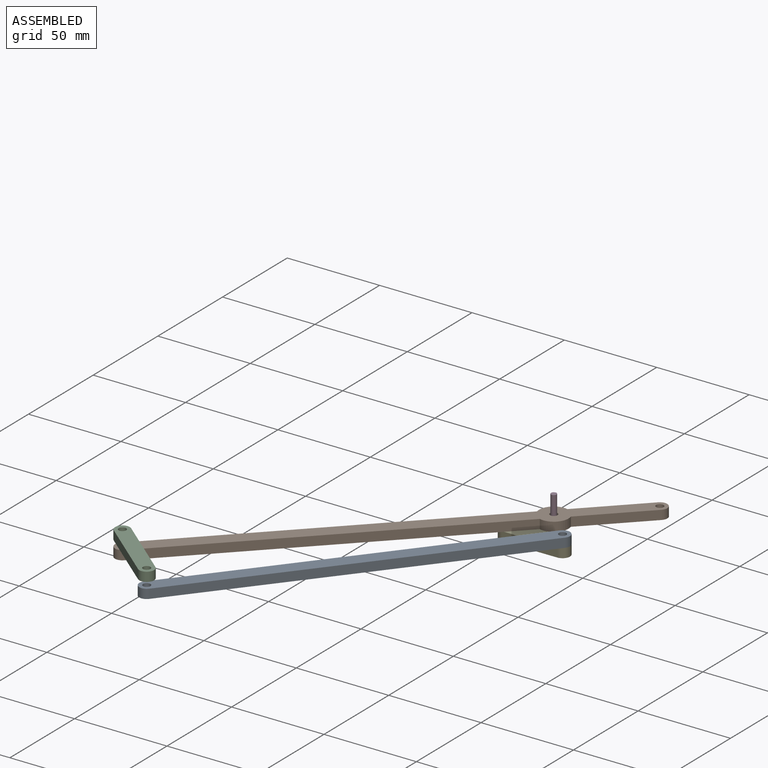
[diagram: assembled view]
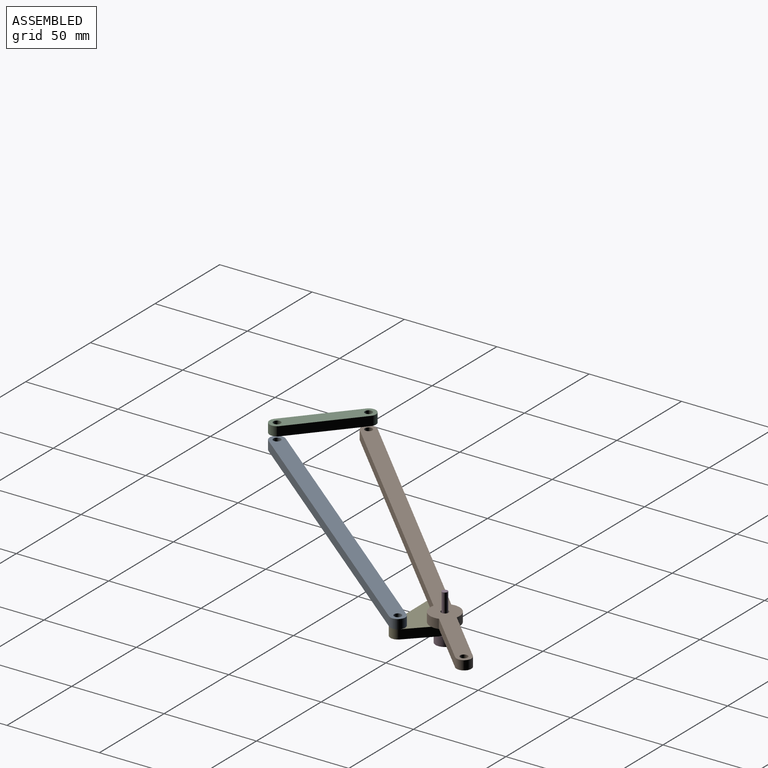
[diagram: assembled view, second angle]
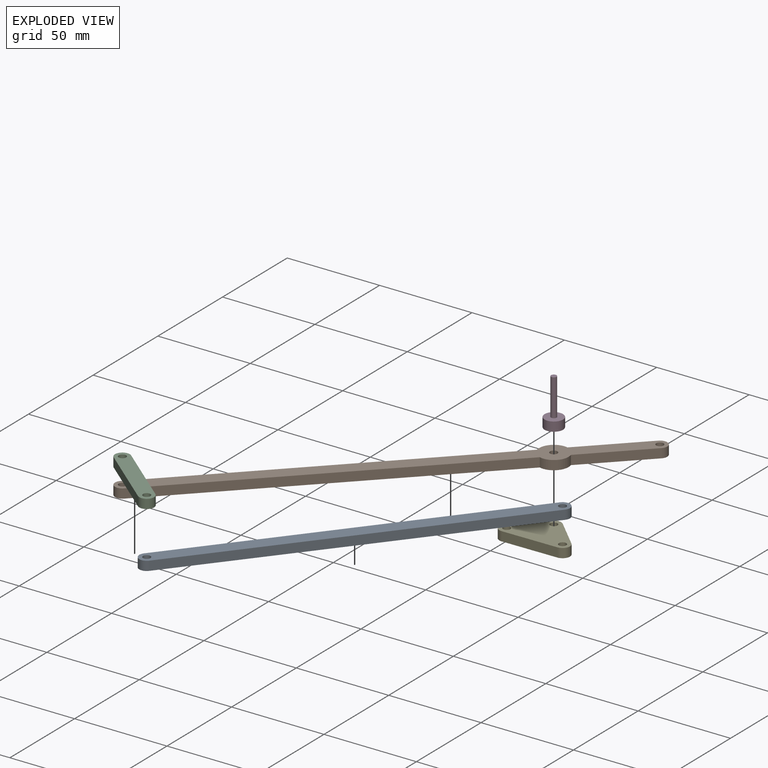
[diagram: exploded view]
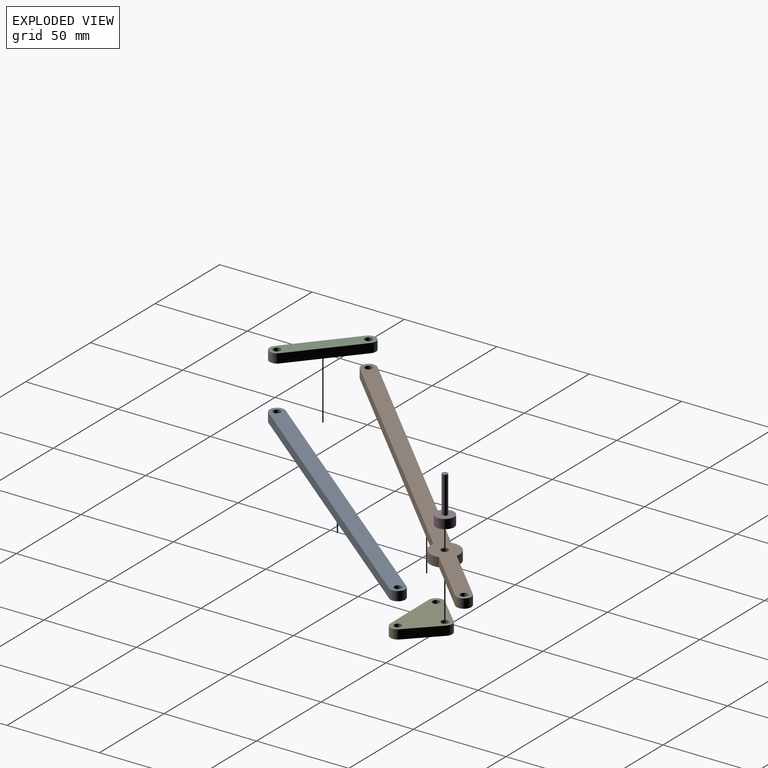
[diagram: exploded view, second angle]
ASSEMBLY  parts=5 mates=8
PART A: 8 faces, bbox 8x200x5 mm
  f0: cylinder r=4mm len=8mm, axis (0,0,-1), area 62.8mm2, adj f1,f5,f6,f7
  f1: plane 192x5mm, normal (-1,0,0), area 960mm2, adj f0,f2,f6,f7
  f2: cylinder r=4mm len=8mm, axis (0,0,-1), area 62.8mm2, adj f1,f5,f6,f7
  f3: cylinder r=2mm len=5mm, axis (0,0,-1), area 62.8mm2, adj f6,f7
  f4: cylinder r=2mm len=5mm, axis (0,0,-1), area 62.8mm2, adj f6,f7
  f5: plane 192x5mm, normal (1,0,0), area 960mm2, adj f0,f2,f6,f7
  f6: plane 200x8mm, normal (0,0,1), area 1561.1mm2, adj f0,f1,f2,f3,f4,f5
  f7: plane 200x8mm, normal (0,0,-1), area 1561.1mm2, adj f0,f1,f2,f3,f4,f5
PART B: 13 faces, bbox 16x250x5 mm
  f0: cylinder r=8mm len=13.71mm, axis (0,0,-1), area 82.3mm2, adj f1,f9,f11,f12
  f1: plane 187.37x5mm, normal (-1,0,0), area 936.9mm2, adj f0,f2,f11,f12
  f2: cylinder r=4mm len=8mm, axis (0,0,-1), area 62.8mm2, adj f1,f3,f11,f12
  f3: plane 187.23x5mm, normal (1,0,0), area 936.2mm2, adj f2,f4,f11,f12
  f4: cylinder r=8mm len=14mm, axis (0,0,-1), area 85.2mm2, adj f3,f5,f11,f12
  f5: plane 40.77x5mm, normal (1,0,0), area 203.9mm2, adj f4,f6,f11,f12
  f6: cylinder r=4mm len=8mm, axis (0,0,-1), area 62.8mm2, adj f5,f9,f11,f12
  f7: cylinder r=2mm len=5mm, axis (0,0,-1), area 62.8mm2, adj f11,f12
  f8: cylinder r=2mm len=5mm, axis (0,0,-1), area 62.8mm2, adj f11,f12
  f9: plane 40.92x5mm, normal (-1,0,0), area 204.6mm2, adj f0,f6,f11,f12
  f10: cylinder r=2mm len=5mm, axis (0,0,-1), area 62.8mm2, adj f11,f12
  f11: plane 250x16mm, normal (0,0,1), area 2027.2mm2, adj f0,f1,f2,f3,f4,f5,f6,f7
  f12: plane 250x16mm, normal (0,0,-1), area 2027.2mm2, adj f0,f1,f2,f3,f4,f5,f6,f7
PART C: 8 faces, bbox 8x50x5 mm
  f0: cylinder r=4mm len=8mm, axis (0,0,-1), area 62.8mm2, adj f1,f5,f6,f7
  f1: plane 42x5mm, normal (-1,0,0), area 210mm2, adj f0,f2,f6,f7
  f2: cylinder r=4mm len=8mm, axis (0,0,-1), area 62.8mm2, adj f1,f5,f6,f7
  f3: cylinder r=2mm len=5mm, axis (0,0,-1), area 62.8mm2, adj f6,f7
  f4: cylinder r=2mm len=5mm, axis (0,0,-1), area 62.8mm2, adj f6,f7
  f5: plane 42x5mm, normal (1,0,0), area 210mm2, adj f0,f2,f6,f7
  f6: plane 50x8mm, normal (0,0,1), area 361.1mm2, adj f0,f1,f2,f3,f4,f5
  f7: plane 50x8mm, normal (0,0,-1), area 361.1mm2, adj f0,f1,f2,f3,f4,f5
PART D: 5 faces, bbox 10x10x25 mm
  f0: cylinder r=1.5mm len=20mm, axis (0,0,-1), area 188.5mm2, adj f1,f3
  f1: plane 3x3mm, normal (0,0,1), area 7.1mm2, adj f0
  f2: cylinder r=5mm len=10mm, axis (0,0,-1), area 157.1mm2, adj f3,f4
  f3: plane 10x10mm, normal (0,0,1), area 71.5mm2, adj f0,f2
  f4: plane 10x10mm, normal (0,0,-1), area 78.5mm2, adj f2
PART E: 11 faces, bbox 38x23x5 mm
  f0: plane 30x5mm, normal (0,1,0), area 150mm2, adj f1,f7,f9,f10
  f1: cylinder r=4mm len=6.83mm, axis (0,0,-1), area 47.1mm2, adj f0,f2,f9,f10
  f2: plane 15x15mm, normal (-0.71,-0.71,0), area 106.1mm2, adj f1,f3,f9,f10
  f3: cylinder r=4mm len=5.66mm, axis (0,0,-1), area 31.4mm2, adj f2,f4,f9,f10
  f4: plane 15x15mm, normal (0.71,-0.71,0), area 106.1mm2, adj f3,f7,f9,f10
  f5: cylinder r=2mm len=5mm, axis (0,0,-1), area 62.8mm2, adj f9,f10
  f6: cylinder r=2mm len=5mm, axis (0,0,-1), area 62.8mm2, adj f9,f10
  f7: cylinder r=4mm len=6.83mm, axis (0,0,-1), area 47.1mm2, adj f0,f4,f9,f10
  f8: cylinder r=2mm len=5mm, axis (0,0,-1), area 62.8mm2, adj f9,f10
  f9: plane 38x23mm, normal (0,0,1), area 527.3mm2, adj f0,f1,f2,f3,f4,f5,f6,f7
  f10: plane 38x23mm, normal (0,0,-1), area 527.3mm2, adj f0,f1,f2,f3,f4,f5,f6,f7
PLACE A rot(axis=(0,0,-1),38.8deg) t=(-74.99,-114.64,-8.37)mm
PLACE B rot(axis=(0,0,-1),44.9deg) t=(-144.91,-55.42,-8.37)mm
PLACE C rot(axis=(0,0,1),49.9deg) t=(-264,-145.53,0)mm
PLACE D rot(axis=(0,0,1),10.8deg) t=(-130.67,-7.62,-18.37)mm
PLACE E rot(axis=(0,0,-1),179.5deg) t=(2.25,86.62,-13.37)mm fixed
MATE cylindrical E.f1 <-> A.f0  axis (0,0,-1) through (-60.38,-0.75,-8.37)mm
MATE cylindrical E.f3 <-> D.f0  axis (0,0,1) through (-75.52,14.11,-8.37)mm
MATE planar E.f9 <-> B.f12  axis (0,0,1) through (-75.42,3.65,-8.37)mm
MATE cylindrical E.f3 <-> B.f0  axis (0,0,1) through (-75.52,14.11,-8.37)mm
MATE cylindrical A.f2 <-> C.f2  axis (0,0,1) through (-180.7,-150.37,-3.37)mm
MATE planar E.f9 <-> A.f7  axis (0,0,1) through (-75.42,3.65,-8.37)mm
MATE planar E.f10 <-> D.f0  axis (0,0,-1) through (-75.42,3.65,-13.37)mm
MATE cylindrical B.f2 <-> C.f0  axis (0,0,1) through (-212.81,-123.29,-3.37)mm
